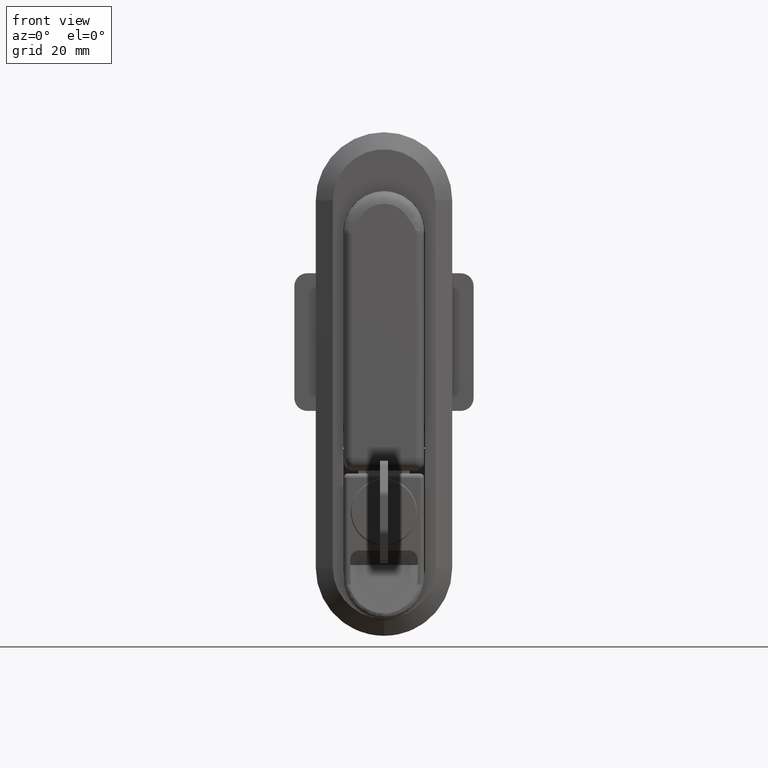
[diagram: clean part render]
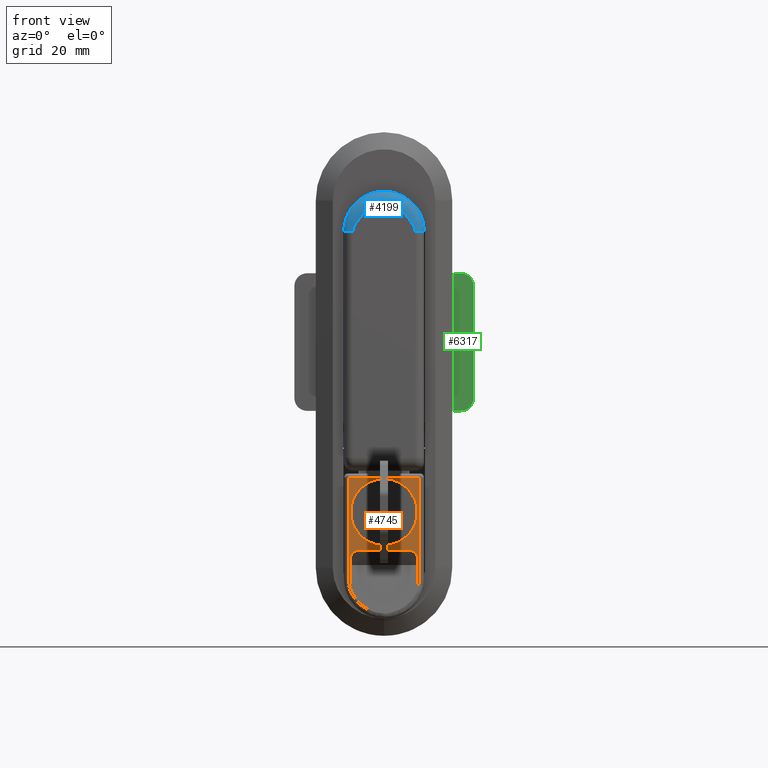
[diagram: same view with three faces highlighted in distinct colors, each labeled with its STEP entity id]
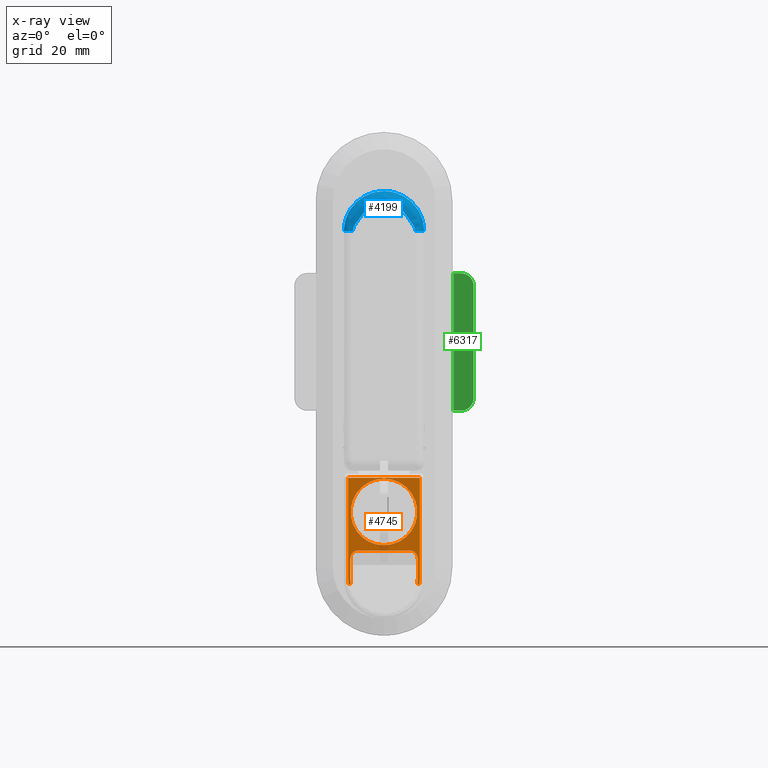
[diagram: x-ray of the same camera — body ghosted, the three highlighted faces saturated]
A machine part, front view with three faces highlighted in distinct colors.
The next image is the same camera in x-ray (body ghosted, the three faces saturated) — at least one of them is partly hidden behind the body in this view.
Their STEP definitions:

[orange] entity #4745 — the highlighted planar face has unit normal (0, 1, 0).
#4479 = VERTEX_POINT ( 'NONE', #8182 ) ;
#4517 = VERTEX_POINT ( 'NONE', #8241 ) ;
#4526 = VERTEX_POINT ( 'NONE', #8269 ) ;
#4528 = EDGE_CURVE ( 'NONE', #4517, #4526, #8258, .T. ) ;
#4530 = EDGE_CURVE ( 'NONE', #4550, #4479, #8257, .T. ) ;
#4539 = VERTEX_POINT ( 'NONE', #8290 ) ;
#4541 = EDGE_CURVE ( 'NONE', #4542, #4539, #8289, .T. ) ;
#4542 = VERTEX_POINT ( 'NONE', #8284 ) ;
#4550 = VERTEX_POINT ( 'NONE', #8343 ) ;
#4716 = ORIENTED_EDGE ( 'NONE', *, *, #4528, .T. ) ;
#4717 = ORIENTED_EDGE ( 'NONE', *, *, #4718, .T. ) ;
#4718 = EDGE_CURVE ( 'NONE', #4526, #4719, #9195, .T. ) ;
#4719 = VERTEX_POINT ( 'NONE', #9190 ) ;
#4720 = ORIENTED_EDGE ( 'NONE', *, *, #4779, .T. ) ;
#4721 = ORIENTED_EDGE ( 'NONE', *, *, #4722, .T. ) ;
#4722 = EDGE_CURVE ( 'NONE', #4539, #4542, #9189, .T. ) ;
#4723 = EDGE_LOOP ( 'NONE', ( #4724, #4727, #4730, #4733, #4794, #4797, #4800, #4716, #4717, #4720, #4780, #4781, #4784, #4787, #4790, #4792 ) ) ;
#4724 = ORIENTED_EDGE ( 'NONE', *, *, #4725, .T. ) ;
#4725 = EDGE_CURVE ( 'NONE', #4479, #4726, #9183, .T. ) ;
#4726 = VERTEX_POINT ( 'NONE', #9243 ) ;
#4727 = ORIENTED_EDGE ( 'NONE', *, *, #4728, .T. ) ;
#4728 = EDGE_CURVE ( 'NONE', #4726, #4729, #9242, .T. ) ;
#4729 = VERTEX_POINT ( 'NONE', #9237 ) ;
#4730 = ORIENTED_EDGE ( 'NONE', *, *, #4731, .F. ) ;
#4731 = EDGE_CURVE ( 'NONE', #4732, #4729, #9236, .T. ) ;
#4732 = VERTEX_POINT ( 'NONE', #9232 ) ;
#4733 = ORIENTED_EDGE ( 'NONE', *, *, #4734, .T. ) ;
#4734 = EDGE_CURVE ( 'NONE', #4732, #4793, #9230, .T. ) ;
#4739 = VERTEX_POINT ( 'NONE', #9215 ) ;
#4741 = EDGE_CURVE ( 'NONE', #4742, #4739, #9279, .T. ) ;
#4742 = VERTEX_POINT ( 'NONE', #9275 ) ;
#4745 = ADVANCED_FACE ( 'NONE', ( #9274, #9268 ), #9267, .F. ) ;
#4746 = EDGE_LOOP ( 'NONE', ( #4747, #4721 ) ) ;
#4747 = ORIENTED_EDGE ( 'NONE', *, *, #4541, .T. ) ;
#4779 = EDGE_CURVE ( 'NONE', #4719, #4742, #9315, .T. ) ;
#4780 = ORIENTED_EDGE ( 'NONE', *, *, #4741, .T. ) ;
#4781 = ORIENTED_EDGE ( 'NONE', *, *, #4782, .T. ) ;
#4782 = EDGE_CURVE ( 'NONE', #4739, #4783, #9307, .T. ) ;
#4783 = VERTEX_POINT ( 'NONE', #9303 ) ;
#4784 = ORIENTED_EDGE ( 'NONE', *, *, #4785, .T. ) ;
#4785 = EDGE_CURVE ( 'NONE', #4783, #4786, #9354, .T. ) ;
#4786 = VERTEX_POINT ( 'NONE', #9349 ) ;
#4787 = ORIENTED_EDGE ( 'NONE', *, *, #4788, .T. ) ;
#4788 = EDGE_CURVE ( 'NONE', #4786, #4789, #9348, .T. ) ;
#4789 = VERTEX_POINT ( 'NONE', #9347 ) ;
#4790 = ORIENTED_EDGE ( 'NONE', *, *, #4791, .F. ) ;
#4791 = EDGE_CURVE ( 'NONE', #4550, #4789, #9342, .T. ) ;
#4792 = ORIENTED_EDGE ( 'NONE', *, *, #4530, .T. ) ;
#4793 = VERTEX_POINT ( 'NONE', #9338 ) ;
#4794 = ORIENTED_EDGE ( 'NONE', *, *, #4795, .F. ) ;
#4795 = EDGE_CURVE ( 'NONE', #4796, #4793, #9337, .T. ) ;
#4796 = VERTEX_POINT ( 'NONE', #9333 ) ;
#4797 = ORIENTED_EDGE ( 'NONE', *, *, #4798, .T. ) ;
#4798 = EDGE_CURVE ( 'NONE', #4796, #4799, #9331, .T. ) ;
#4799 = VERTEX_POINT ( 'NONE', #9332 ) ;
#4800 = ORIENTED_EDGE ( 'NONE', *, *, #4801, .F. ) ;
#4801 = EDGE_CURVE ( 'NONE', #4517, #4799, #9326, .T. ) ;
#8182 = CARTESIAN_POINT ( 'NONE',  ( -3.399999999999999900, 7.900000000000000400, -80.79999999999999700 ) ) ;
#8241 = CARTESIAN_POINT ( 'NONE',  ( -3.399999999999999900, -8.239804809718641800, -82.14100500000010600 ) ) ;
#8249 = DIRECTION ( 'NONE',  ( 0.0000000000000000000, 0.0000000000000000000, -1.000000000000000000 ) ) ;
#8250 = DIRECTION ( 'NONE',  ( 1.000000000000000000, 0.0000000000000000000, 0.0000000000000000000 ) ) ;
#8251 = CARTESIAN_POINT ( 'NONE',  ( -3.399999999999999900, 0.0000000000000000000, -80.79999999999999700 ) ) ;
#8252 = AXIS2_PLACEMENT_3D ( 'NONE', #8251, #8250, #8249 ) ;
#8253 = CARTESIAN_POINT ( 'NONE',  ( -3.399999999999999900, -8.291526928518660400, -82.14557838628978500 ) ) ;
#8254 = CARTESIAN_POINT ( 'NONE',  ( -3.399999999999999900, -8.274492251707306100, -82.14251477352333100 ) ) ;
#8255 = CARTESIAN_POINT ( 'NONE',  ( -3.399999999999999900, -8.257112782946247600, -82.14100500000010600 ) ) ;
#8256 = CARTESIAN_POINT ( 'NONE',  ( -3.399999999999999900, -8.239804809718641800, -82.14100500000010600 ) ) ;
#8257 = CIRCLE ( 'NONE', #8252, 7.900000000000003900 ) ;
#8258 = B_SPLINE_CURVE_WITH_KNOTS ( 'NONE', 3,
 ( #8256, #8255, #8254, #8253 ),
 .UNSPECIFIED., .F., .F.,
 ( 4, 4 ),
 ( 5.497513588186636000E-016, 5.192391968423578800E-005 ),
 .UNSPECIFIED. ) ;
#8269 = CARTESIAN_POINT ( 'NONE',  ( -3.399999999999999900, -8.291526928518660400, -82.14557838628978500 ) ) ;
#8284 = CARTESIAN_POINT ( 'NONE',  ( -3.399999999999959900, 0.0000000000000000000, -57.39999999999999100 ) ) ;
#8285 = DIRECTION ( 'NONE',  ( 0.0000000000000000000, 0.0000000000000000000, -1.000000000000000000 ) ) ;
#8286 = DIRECTION ( 'NONE',  ( 1.000000000000000000, 0.0000000000000000000, 0.0000000000000000000 ) ) ;
#8287 = CARTESIAN_POINT ( 'NONE',  ( -3.399999999999959900, 0.0000000000000000000, -65.19999999999998900 ) ) ;
#8288 = AXIS2_PLACEMENT_3D ( 'NONE', #8287, #8286, #8285 ) ;
#8289 = CIRCLE ( 'NONE', #8288, 7.800000000000001600 ) ;
#8290 = CARTESIAN_POINT ( 'NONE',  ( -3.399999999999959900, 9.552245033349352600E-016, -73.00000000000000000 ) ) ;
#8343 = CARTESIAN_POINT ( 'NONE',  ( -3.399999999999999900, 7.785351988829240200, -82.14100500000010600 ) ) ;
#9180 = DIRECTION ( 'NONE',  ( 0.0000000000000000000, 0.0000000000000000000, 1.000000000000000000 ) ) ;
#9181 = VECTOR ( 'NONE', #9180, 1000.000000000000000 ) ;
#9182 = CARTESIAN_POINT ( 'NONE',  ( -3.399999999999999900, 7.900000000000000400, -57.20000000000000300 ) ) ;
#9183 = LINE ( 'NONE', #9182, #9181 ) ;
#9185 = DIRECTION ( 'NONE',  ( 0.0000000000000000000, 0.0000000000000000000, -1.000000000000000000 ) ) ;
#9186 = DIRECTION ( 'NONE',  ( 1.000000000000000000, 0.0000000000000000000, 0.0000000000000000000 ) ) ;
#9187 = CARTESIAN_POINT ( 'NONE',  ( -3.399999999999959900, 0.0000000000000000000, -65.19999999999998900 ) ) ;
#9188 = AXIS2_PLACEMENT_3D ( 'NONE', #9187, #9186, #9185 ) ;
#9189 = CIRCLE ( 'NONE', #9188, 7.800000000000001600 ) ;
#9190 = CARTESIAN_POINT ( 'NONE',  ( -3.399999999999999900, -8.400000000000000400, -80.79999999999999700 ) ) ;
#9191 = DIRECTION ( 'NONE',  ( 0.0000000000000000000, -1.776356839400249700E-015, -1.000000000000000000 ) ) ;
#9192 = DIRECTION ( 'NONE',  ( -1.000000000000000000, 0.0000000000000000000, 0.0000000000000000000 ) ) ;
#9193 = CARTESIAN_POINT ( 'NONE',  ( -3.399999999999999900, 0.0000000000000000000, -80.79999999999999700 ) ) ;
#9194 = AXIS2_PLACEMENT_3D ( 'NONE', #9193, #9192, #9191 ) ;
#9195 = CIRCLE ( 'NONE', #9194, 8.400000000000003900 ) ;
#9215 = CARTESIAN_POINT ( 'NONE',  ( -3.399999999999999900, 8.400000000000000400, -57.20000000000000300 ) ) ;
#9226 = DIRECTION ( 'NONE',  ( 0.0000000000000000000, 0.0000000000000000000, -1.000000000000000000 ) ) ;
#9227 = DIRECTION ( 'NONE',  ( 1.000000000000000000, 0.0000000000000000000, 0.0000000000000000000 ) ) ;
#9228 = CARTESIAN_POINT ( 'NONE',  ( -3.399999999999999900, -5.899999999999999500, -76.20000000000000300 ) ) ;
#9229 = AXIS2_PLACEMENT_3D ( 'NONE', #9228, #9227, #9226 ) ;
#9230 = CIRCLE ( 'NONE', #9229, 2.000000000000001800 ) ;
#9232 = CARTESIAN_POINT ( 'NONE',  ( -3.399999999999999900, -5.899999999999999500, -74.20000000000000300 ) ) ;
#9233 = DIRECTION ( 'NONE',  ( 0.0000000000000000000, 1.000000000000000000, 0.0000000000000000000 ) ) ;
#9234 = VECTOR ( 'NONE', #9233, 1000.000000000000000 ) ;
#9235 = CARTESIAN_POINT ( 'NONE',  ( -3.399999999999999900, -992.1000000000000200, -74.20000000000000300 ) ) ;
#9236 = LINE ( 'NONE', #9235, #9234 ) ;
#9237 = CARTESIAN_POINT ( 'NONE',  ( -3.399999999999999900, 5.899999999999999500, -74.20000000000000300 ) ) ;
#9238 = DIRECTION ( 'NONE',  ( 0.0000000000000000000, 0.0000000000000000000, -1.000000000000000000 ) ) ;
#9239 = DIRECTION ( 'NONE',  ( 1.000000000000000000, 0.0000000000000000000, 0.0000000000000000000 ) ) ;
#9240 = CARTESIAN_POINT ( 'NONE',  ( -3.399999999999999900, 5.899999999999999500, -76.20000000000000300 ) ) ;
#9241 = AXIS2_PLACEMENT_3D ( 'NONE', #9240, #9239, #9238 ) ;
#9242 = CIRCLE ( 'NONE', #9241, 2.000000000000001800 ) ;
#9243 = CARTESIAN_POINT ( 'NONE',  ( -3.399999999999999900, 7.900000000000000400, -76.20000000000000300 ) ) ;
#9263 = DIRECTION ( 'NONE',  ( 0.0000000000000000000, 0.0000000000000000000, -1.000000000000000000 ) ) ;
#9264 = DIRECTION ( 'NONE',  ( 1.000000000000000000, 0.0000000000000000000, 0.0000000000000000000 ) ) ;
#9265 = CARTESIAN_POINT ( 'NONE',  ( -3.399999999999999900, -990.6000000000000200, -57.20000000000000300 ) ) ;
#9266 = AXIS2_PLACEMENT_3D ( 'NONE', #9265, #9264, #9263 ) ;
#9267 = PLANE ( 'NONE',  #9266 ) ;
#9268 = FACE_OUTER_BOUND ( 'NONE', #4723, .T. ) ;
#9274 = FACE_BOUND ( 'NONE', #4746, .T. ) ;
#9275 = CARTESIAN_POINT ( 'NONE',  ( -3.399999999999999900, -8.400000000000000400, -57.20000000000000300 ) ) ;
#9276 = DIRECTION ( 'NONE',  ( 0.0000000000000000000, 1.000000000000000000, 0.0000000000000000000 ) ) ;
#9277 = VECTOR ( 'NONE', #9276, 1000.000000000000000 ) ;
#9278 = CARTESIAN_POINT ( 'NONE',  ( -3.399999999999999900, -990.6000000000000200, -57.20000000000000300 ) ) ;
#9279 = LINE ( 'NONE', #9278, #9277 ) ;
#9303 = CARTESIAN_POINT ( 'NONE',  ( -3.399999999999999900, 8.400000000000000400, -80.79999999999999700 ) ) ;
#9304 = DIRECTION ( 'NONE',  ( 0.0000000000000000000, 0.0000000000000000000, -1.000000000000000000 ) ) ;
#9305 = VECTOR ( 'NONE', #9304, 1000.000000000000000 ) ;
#9306 = CARTESIAN_POINT ( 'NONE',  ( -3.399999999999999900, 8.400000000000000400, -57.20000000000000300 ) ) ;
#9307 = LINE ( 'NONE', #9306, #9305 ) ;
#9308 = DIRECTION ( 'NONE',  ( 0.0000000000000000000, 0.0000000000000000000, 1.000000000000000000 ) ) ;
#9309 = VECTOR ( 'NONE', #9308, 1000.000000000000000 ) ;
#9310 = CARTESIAN_POINT ( 'NONE',  ( -3.399999999999999900, -8.400000000000000400, -57.20000000000000300 ) ) ;
#9315 = LINE ( 'NONE', #9310, #9309 ) ;
#9325 = CARTESIAN_POINT ( 'NONE',  ( -3.399999999999999900, -990.6000000000000200, -82.14100500000010600 ) ) ;
#9326 = LINE ( 'NONE', #9325, #9384 ) ;
#9327 = DIRECTION ( 'NONE',  ( 0.0000000000000000000, 0.0000000000000000000, -1.000000000000000000 ) ) ;
#9328 = DIRECTION ( 'NONE',  ( 1.000000000000000000, 0.0000000000000000000, 0.0000000000000000000 ) ) ;
#9329 = CARTESIAN_POINT ( 'NONE',  ( -3.399999999999999900, 0.0000000000000000000, -80.79999999999999700 ) ) ;
#9330 = AXIS2_PLACEMENT_3D ( 'NONE', #9329, #9328, #9327 ) ;
#9331 = CIRCLE ( 'NONE', #9330, 7.900000000000003900 ) ;
#9332 = CARTESIAN_POINT ( 'NONE',  ( -3.399999999999999900, -7.785351988830130100, -82.14100500000010600 ) ) ;
#9333 = CARTESIAN_POINT ( 'NONE',  ( -3.399999999999999900, -7.900000000000000400, -80.79999999999999700 ) ) ;
#9334 = DIRECTION ( 'NONE',  ( 0.0000000000000000000, 0.0000000000000000000, 1.000000000000000000 ) ) ;
#9335 = VECTOR ( 'NONE', #9334, 1000.000000000000000 ) ;
#9336 = CARTESIAN_POINT ( 'NONE',  ( -3.399999999999999900, -7.900000000000000400, -57.20000000000000300 ) ) ;
#9337 = LINE ( 'NONE', #9336, #9335 ) ;
#9338 = CARTESIAN_POINT ( 'NONE',  ( -3.399999999999999900, -7.900000000000000400, -76.20000000000000300 ) ) ;
#9339 = DIRECTION ( 'NONE',  ( 0.0000000000000000000, 1.000000000000000000, 0.0000000000000000000 ) ) ;
#9340 = VECTOR ( 'NONE', #9339, 1000.000000000000000 ) ;
#9341 = CARTESIAN_POINT ( 'NONE',  ( -3.399999999999999900, -990.6000000000000200, -82.14100500000010600 ) ) ;
#9342 = LINE ( 'NONE', #9341, #9340 ) ;
#9343 = CARTESIAN_POINT ( 'NONE',  ( -3.399999999999999900, 8.239804809717759000, -82.14100500000010600 ) ) ;
#9344 = CARTESIAN_POINT ( 'NONE',  ( -3.399999999999999900, 8.257112782946242300, -82.14100500000010600 ) ) ;
#9345 = CARTESIAN_POINT ( 'NONE',  ( -3.399999999999999900, 8.274492251707414400, -82.14251477352067400 ) ) ;
#9346 = CARTESIAN_POINT ( 'NONE',  ( -3.399999999999999900, 8.291526928518660400, -82.14557838628978500 ) ) ;
#9347 = CARTESIAN_POINT ( 'NONE',  ( -3.399999999999999900, 8.239804809717759000, -82.14100500000010600 ) ) ;
#9348 = B_SPLINE_CURVE_WITH_KNOTS ( 'NONE', 3,
 ( #9346, #9345, #9344, #9343 ),
 .UNSPECIFIED., .F., .F.,
 ( 4, 4 ),
 ( 0.0000000000000000000, 5.192391968456513400E-005 ),
 .UNSPECIFIED. ) ;
#9349 = CARTESIAN_POINT ( 'NONE',  ( -3.399999999999999900, 8.291526928518660400, -82.14557838628978500 ) ) ;
#9350 = DIRECTION ( 'NONE',  ( 0.0000000000000000000, 0.0000000000000000000, -1.000000000000000000 ) ) ;
#9351 = DIRECTION ( 'NONE',  ( -1.000000000000000000, 0.0000000000000000000, 0.0000000000000000000 ) ) ;
#9352 = CARTESIAN_POINT ( 'NONE',  ( -3.399999999999999900, 0.0000000000000000000, -80.79999999999999700 ) ) ;
#9353 = AXIS2_PLACEMENT_3D ( 'NONE', #9352, #9351, #9350 ) ;
#9354 = CIRCLE ( 'NONE', #9353, 8.400000000000003900 ) ;
#9383 = DIRECTION ( 'NONE',  ( 0.0000000000000000000, 1.000000000000000000, 0.0000000000000000000 ) ) ;
#9384 = VECTOR ( 'NONE', #9383, 1000.000000000000000 ) ;

[blue] entity #4199 — the highlighted face is a freeform B-spline surface patch.
#4198 = EDGE_CURVE ( 'NONE', #5444, #5421, #7609, .T. ) ;
#4199 = ADVANCED_FACE ( 'NONE', ( #7610 ), #7636, .F. ) ;
#4200 = EDGE_LOOP ( 'NONE', ( #4201, #4202, #4203, #4204, #4205, #4264 ) ) ;
#4201 = ORIENTED_EDGE ( 'NONE', *, *, #4208, .F. ) ;
#4202 = ORIENTED_EDGE ( 'NONE', *, *, #5555, .T. ) ;
#4203 = ORIENTED_EDGE ( 'NONE', *, *, #5552, .T. ) ;
#4204 = ORIENTED_EDGE ( 'NONE', *, *, #5446, .T. ) ;
#4205 = ORIENTED_EDGE ( 'NONE', *, *, #4198, .T. ) ;
#4208 = EDGE_CURVE ( 'NONE', #5556, #5489, #7602, .T. ) ;
#4264 = ORIENTED_EDGE ( 'NONE', *, *, #5491, .T. ) ;
#5421 = VERTEX_POINT ( 'NONE', #12411 ) ;
#5444 = VERTEX_POINT ( 'NONE', #12453 ) ;
#5446 = EDGE_CURVE ( 'NONE', #5447, #5444, #12451, .T. ) ;
#5447 = VERTEX_POINT ( 'NONE', #12452 ) ;
#5489 = VERTEX_POINT ( 'NONE', #12525 ) ;
#5491 = EDGE_CURVE ( 'NONE', #5421, #5489, #12582, .T. ) ;
#5552 = EDGE_CURVE ( 'NONE', #5553, #5447, #12723, .T. ) ;
#5553 = VERTEX_POINT ( 'NONE', #12722 ) ;
#5555 = EDGE_CURVE ( 'NONE', #5556, #5553, #12714, .T. ) ;
#5556 = VERTEX_POINT ( 'NONE', #12715 ) ;
#7602 =( BOUNDED_CURVE ( )  B_SPLINE_CURVE ( 2, ( #7690, #7689, #7688 ),
 .UNSPECIFIED., .F., .T. ) 
 B_SPLINE_CURVE_WITH_KNOTS ( ( 3, 3 ),
 ( 0.0000000000000000000, 1.000000000000000000 ),
 .UNSPECIFIED. ) 
 CURVE ( )  GEOMETRIC_REPRESENTATION_ITEM ( )  RATIONAL_B_SPLINE_CURVE ( ( 1.000000000000000000, 0.7071067811865480200, 1.000000000000000000 ) ) 
 REPRESENTATION_ITEM ( '' )  );
#7603 = CARTESIAN_POINT ( 'NONE',  ( -3.500000000000000000, 6.604247028689099100, 2.408861487050674800 ) ) ;
#7604 = CARTESIAN_POINT ( 'NONE',  ( -3.500000000000000000, 7.299999961357069200, 1.593784728837129800 ) ) ;
#7605 = CARTESIAN_POINT ( 'NONE',  ( -3.500000000000000000, 7.299999999999999800, 0.5999999999999999800 ) ) ;
#7606 = CARTESIAN_POINT ( 'NONE',  ( -3.500000000000000000, 7.299999999999999800, 0.5999999999999999800 ) ) ;
#7607 = CARTESIAN_POINT ( 'NONE',  ( -3.499999999999999600, 9.400000000000062500, 0.5999999999999970900 ) ) ;
#7608 = CARTESIAN_POINT ( 'NONE',  ( -1.399999999999955900, 9.400000000000000400, 0.5999999999999999800 ) ) ;
#7609 =( BOUNDED_CURVE ( )  B_SPLINE_CURVE ( 2, ( #7608, #7607, #7606 ),
 .UNSPECIFIED., .F., .F. ) 
 B_SPLINE_CURVE_WITH_KNOTS ( ( 3, 3 ),
 ( 0.0000000000000000000, 1.000000000000000000 ),
 .UNSPECIFIED. ) 
 CURVE ( )  GEOMETRIC_REPRESENTATION_ITEM ( )  RATIONAL_B_SPLINE_CURVE ( ( 1.000000000000000000, 0.7071067811865400200, 1.000000000000000000 ) ) 
 REPRESENTATION_ITEM ( '' )  );
#7610 = FACE_OUTER_BOUND ( 'NONE', #4200, .T. ) ;
#7611 = CARTESIAN_POINT ( 'NONE',  ( -3.500000000000000000, 7.064713442045501800, 4.679013598934752800 ) ) ;
#7612 = CARTESIAN_POINT ( 'NONE',  ( -3.500000000000000000, 7.330968394073655900, 4.215638652075456100 ) ) ;
#7613 = CARTESIAN_POINT ( 'NONE',  ( -3.500000000000002200, 7.463129071894962300, 3.982335992856312700 ) ) ;
#7614 = CARTESIAN_POINT ( 'NONE',  ( -3.500000000000002200, 8.098644543355918700, 2.790541552550903000 ) ) ;
#7615 = CARTESIAN_POINT ( 'NONE',  ( -3.500000000000941000, 8.530151502933815500, 1.732554161948471900 ) ) ;
#7616 = CARTESIAN_POINT ( 'NONE',  ( -3.500000000000000000, 8.530151519016532900, 0.5999999999999985300 ) ) ;
#7617 = CARTESIAN_POINT ( 'NONE',  ( -3.500000000000000000, -7.299999999999999800, 0.5999999999999999800 ) ) ;
#7618 = CARTESIAN_POINT ( 'NONE',  ( -3.500000000000000000, -7.299999961360379400, 1.593784728837824800 ) ) ;
#7619 = CARTESIAN_POINT ( 'NONE',  ( -3.500000000000000000, -6.604247028688649700, 2.408861487049764400 ) ) ;
#7620 = CARTESIAN_POINT ( 'NONE',  ( -3.500000000000000000, -5.902375201992359000, 3.276520659253709900 ) ) ;
#7621 = CARTESIAN_POINT ( 'NONE',  ( -3.500000000000000000, -5.769535399781200400, 3.446024905262774900 ) ) ;
#7622 = CARTESIAN_POINT ( 'NONE',  ( -3.500000000000000000, -5.536884684436301100, 3.797382537489234300 ) ) ;
#7623 = CARTESIAN_POINT ( 'NONE',  ( -3.500000000000000000, -5.437763876023940000, 3.981506903274350400 ) ) ;
#7624 = CARTESIAN_POINT ( 'NONE',  ( -3.500000000000000000, -5.088688804160950600, 4.503934667427680300 ) ) ;
#7625 = CARTESIAN_POINT ( 'NONE',  ( -3.500000000000000000, -4.821675594912390400, 4.829291204275150100 ) ) ;
#7626 = CARTESIAN_POINT ( 'NONE',  ( -3.500000000000000000, -3.340714618319954500, 6.310252180868910300 ) ) ;
#7627 = CARTESIAN_POINT ( 'NONE',  ( -3.500000000000000000, -1.675516078754155000, 6.999999999998929700 ) ) ;
#7628 = CARTESIAN_POINT ( 'NONE',  ( -3.500000000000000000, 1.675516078754165000, 7.000000000001070300 ) ) ;
#7629 = CARTESIAN_POINT ( 'NONE',  ( -3.500000000000000000, 3.340714618318899800, 6.310252180867849800 ) ) ;
#7630 = CARTESIAN_POINT ( 'NONE',  ( -3.500000000000000000, 4.821675594912660400, 4.829291204275421000 ) ) ;
#7631 = CARTESIAN_POINT ( 'NONE',  ( -3.500000000000000000, 5.088688804160610400, 4.503934667427810000 ) ) ;
#7632 = CARTESIAN_POINT ( 'NONE',  ( -3.500000000000000000, 5.437763876024149600, 3.981506903274269600 ) ) ;
#7633 = CARTESIAN_POINT ( 'NONE',  ( -3.500000000000000000, 5.536884684436419200, 3.797382537489014900 ) ) ;
#7634 = CARTESIAN_POINT ( 'NONE',  ( -3.500000000000000000, 5.769535399781148900, 3.446024905262949900 ) ) ;
#7635 = CARTESIAN_POINT ( 'NONE',  ( -3.500000000000000000, 5.902375201992279100, 3.276520659253475000 ) ) ;
#7636 =( BOUNDED_SURFACE ( )  B_SPLINE_SURFACE ( 3, 3, ( 
 ( #7605, #7604, #7603, #7635, #7634, #7633, #7632, #7631, #7630, #7629, #7628, #7627, #7626, #7625, #7624, #7623, #7622, #7621, #7620, #7619, #7618, #7617 ),
 ( #7616, #7615, #7614, #7613, #7612, #7611, #7685, #7684, #7683, #7682, #7681, #7680, #7679, #7678, #7677, #7676, #7675, #7674, #7673, #7672, #7671, #7670 ),
 ( #7669, #7668, #7667, #7666, #7665, #7664, #7663, #7662, #7661, #7660, #7659, #7658, #7657, #7656, #7655, #7654, #7653, #7652, #7651, #7650, #7649, #7648 ),
 ( #7647, #7646, #7645, #7644, #7643, #7642, #7641, #7640, #7639, #7638, #7702, #7701, #7700, #7699, #7698, #7697, #7696, #7695, #7694, #7693, #7692, #7691 ) ),
 .UNSPECIFIED., .F., .F., .T. ) 
 B_SPLINE_SURFACE_WITH_KNOTS ( ( 4, 4 ),
 ( 4, 2, 2, 2, 2, 2, 2, 2, 2, 2, 4 ),
 ( 0.0000000000000000000, 1.000000000000000000 ),
 ( 1.570796326794895000, 1.963495408493620000, 2.061670178918300100, 2.159844949342985200, 2.356194490192344800, 3.141592653589795300, 3.926990816987240100, 4.123340357836605500, 4.221515128261285300, 4.319689898685965100, 4.712388980384689700 ),
 .UNSPECIFIED. ) 
 GEOMETRIC_REPRESENTATION_ITEM ( )  RATIONAL_B_SPLINE_SURFACE ( (
 ( 1.000000000000000000, 1.000000000000000000, 1.000000000000000000, 1.000000000000000000, 1.000000000000000000, 1.000000000000000000, 1.000000000000000000, 1.000000000000000000, 1.000000000000000000, 1.000000000000000000, 1.000000000000000000, 1.000000000000000000, 1.000000000000000000, 1.000000000000000000, 1.000000000000000000, 1.000000000000000000, 1.000000000000000000, 1.000000000000000000, 1.000000000000000000, 1.000000000000000000, 1.000000000000000000, 1.000000000000000000),
 ( 0.8047378541243599400, 0.8047378541243599400, 0.8047378541243700400, 0.8047378541243700400, 0.8047378541243706000, 0.8047378541243706000, 0.8047378541243693800, 0.8047378541243693800, 0.8047378541243693800, 0.8047378541243693800, 0.8047378541243693800, 0.8047378541243693800, 0.8047378541243693800, 0.8047378541243693800, 0.8047378541243693800, 0.8047378541243693800, 0.8047378541243620500, 0.8047378541243620500, 0.8047378541243706000, 0.8047378541243706000, 0.8047378541243599400, 0.8047378541243599400),
 ( 0.8047378541243599400, 0.8047378541243599400, 0.8047378541243700400, 0.8047378541243700400, 0.8047378541243706000, 0.8047378541243706000, 0.8047378541243693800, 0.8047378541243693800, 0.8047378541243693800, 0.8047378541243693800, 0.8047378541243693800, 0.8047378541243693800, 0.8047378541243693800, 0.8047378541243693800, 0.8047378541243693800, 0.8047378541243693800, 0.8047378541243620500, 0.8047378541243620500, 0.8047378541243706000, 0.8047378541243706000, 0.8047378541243599400, 0.8047378541243599400),
 ( 1.000000000000000000, 1.000000000000000000, 1.000000000000000000, 1.000000000000000000, 1.000000000000000000, 1.000000000000000000, 1.000000000000000000, 1.000000000000000000, 1.000000000000000000, 1.000000000000000000, 1.000000000000000000, 1.000000000000000000, 1.000000000000000000, 1.000000000000000000, 1.000000000000000000, 1.000000000000000000, 1.000000000000000000, 1.000000000000000000, 1.000000000000000000, 1.000000000000000000, 1.000000000000000000, 1.000000000000000000) ) ) 
 REPRESENTATION_ITEM ( '' )  SURFACE ( )  );
#7638 = CARTESIAN_POINT ( 'NONE',  ( -0.5000000000000560700, 4.906674595656680200, 8.986932890650420400 ) ) ;
#7639 = CARTESIAN_POINT ( 'NONE',  ( -0.5000000000000560700, 7.081836030027770500, 6.811771456279331000 ) ) ;
#7640 = CARTESIAN_POINT ( 'NONE',  ( -0.5000000000000560700, 7.474011681111260700, 6.333904042784350700 ) ) ;
#7641 = CARTESIAN_POINT ( 'NONE',  ( -0.5000000000000560700, 7.986715692910279600, 5.566588264184209900 ) ) ;
#7642 = CARTESIAN_POINT ( 'NONE',  ( -0.4903320358932229900, 8.145051517041960000, 5.302420900987499400 ) ) ;
#7643 = CARTESIAN_POINT ( 'NONE',  ( -0.5298828078569219900, 8.435068252707139900, 4.759837751341239100 ) ) ;
#7644 = CARTESIAN_POINT ( 'NONE',  ( -0.5773437546363050500, 8.566748717059100600, 4.481422801509524800 ) ) ;
#7645 = CARTESIAN_POINT ( 'NONE',  ( -0.8937499814550879900, 9.155343159794139000, 3.060430115121125300 ) ) ;
#7646 = CARTESIAN_POINT ( 'NONE',  ( -1.399999962972464000, 9.400000000000000400, 1.830678969114545100 ) ) ;
#7647 = CARTESIAN_POINT ( 'NONE',  ( -1.399999999999955900, 9.400000000000000400, 0.5999999999999999800 ) ) ;
#7648 = CARTESIAN_POINT ( 'NONE',  ( -2.630151519016476600, -9.400000000000019900, 0.6000000000000013100 ) ) ;
#7649 = CARTESIAN_POINT ( 'NONE',  ( -2.630151503679187400, -9.399999999926242500, 1.830678969119718900 ) ) ;
#7650 = CARTESIAN_POINT ( 'NONE',  ( -2.420455895383477600, -9.155343159776400300, 3.060430115114189500 ) ) ;
#7651 = CARTESIAN_POINT ( 'NONE',  ( -2.289396145015961400, -8.566748717063452600, 4.481422801511254100 ) ) ;
#7652 = CARTESIAN_POINT ( 'NONE',  ( -2.269737177176824000, -8.435068252706722400, 4.759837751340918500 ) ) ;
#7653 = CARTESIAN_POINT ( 'NONE',  ( -2.253354711027066000, -8.145051517042340100, 5.302420900987920400 ) ) ;
#7654 = CARTESIAN_POINT ( 'NONE',  ( -2.257359312880782300, -7.986715692910243200, 5.566588264184140700 ) ) ;
#7655 = CARTESIAN_POINT ( 'NONE',  ( -2.257359312880666800, -7.474011681111168300, 6.333904042784472400 ) ) ;
#7656 = CARTESIAN_POINT ( 'NONE',  ( -2.257359312880666800, -7.081836030028009400, 6.811771456278875400 ) ) ;
#7657 = CARTESIAN_POINT ( 'NONE',  ( -2.257359312881055800, -4.906674595655589500, 8.986932890652083100 ) ) ;
#7658 = CARTESIAN_POINT ( 'NONE',  ( -2.257359312880745900, -2.460914240665020200, 10.00000000000121700 ) ) ;
#7659 = CARTESIAN_POINT ( 'NONE',  ( -2.257359312880745900, 2.460914240665032200, 9.999999999998717500 ) ) ;
#7660 = CARTESIAN_POINT ( 'NONE',  ( -2.257359312880434600, 4.906674595656658000, 8.986932890651022600 ) ) ;
#7661 = CARTESIAN_POINT ( 'NONE',  ( -2.257359312880824500, 7.081836030027744800, 6.811771456279152500 ) ) ;
#7662 = CARTESIAN_POINT ( 'NONE',  ( -2.257359312880588200, 7.474011681111128300, 6.333904042784260100 ) ) ;
#7663 = CARTESIAN_POINT ( 'NONE',  ( -2.257359312880824500, 7.986715692910307100, 5.566588264184226800 ) ) ;
#7664 = CARTESIAN_POINT ( 'NONE',  ( -2.253354711027159700, 8.145051517042386300, 5.302420900987629100 ) ) ;
#7665 = CARTESIAN_POINT ( 'NONE',  ( -2.269737177176849300, 8.435068252706642500, 4.759837751341075700 ) ) ;
#7666 = CARTESIAN_POINT ( 'NONE',  ( -2.289396145015938400, 8.566748717063308800, 4.481422801511161700 ) ) ;
#7667 = CARTESIAN_POINT ( 'NONE',  ( -2.420455895383575800, 9.155343159777150000, 3.060430115114512400 ) ) ;
#7668 = CARTESIAN_POINT ( 'NONE',  ( -2.630151503680127500, 9.399999999923750200, 1.830678969119448300 ) ) ;
#7669 = CARTESIAN_POINT ( 'NONE',  ( -2.630151519016476600, 9.400000000000037700, 0.5999999999999985300 ) ) ;
#7670 = CARTESIAN_POINT ( 'NONE',  ( -3.500000000000000000, -8.530151519016515100, 0.6000000000000013100 ) ) ;
#7671 = CARTESIAN_POINT ( 'NONE',  ( -3.500000000000000000, -8.530151502937680900, 1.732554161949110900 ) ) ;
#7672 = CARTESIAN_POINT ( 'NONE',  ( -3.499999999999686000, -8.098644543355037600, 2.790541552550080500 ) ) ;
#7673 = CARTESIAN_POINT ( 'NONE',  ( -3.500000000000078200, -7.463129071895138200, 3.982335992856527600 ) ) ;
#7674 = CARTESIAN_POINT ( 'NONE',  ( -3.499999999999999100, -7.330968394073746500, 4.215638652075234000 ) ) ;
#7675 = CARTESIAN_POINT ( 'NONE',  ( -3.499999999999999100, -7.064713442045427200, 4.679013598935083200 ) ) ;
#7676 = CARTESIAN_POINT ( 'NONE',  ( -3.500000000000038600, -6.930905280520382100, 4.910026067030494300 ) ) ;
#7677 = CARTESIAN_POINT ( 'NONE',  ( -3.499999999999921400, -6.485978594839589400, 5.575905908784276800 ) ) ;
#7678 = CARTESIAN_POINT ( 'NONE',  ( -3.499999999999921400, -6.145646924664040600, 5.990601248762029500 ) ) ;
#7679 = CARTESIAN_POINT ( 'NONE',  ( -3.500000000000311800, -4.258032734909699400, 7.878215438517705700 ) ) ;
#7680 = CARTESIAN_POINT ( 'NONE',  ( -3.500000000000000900, -2.135591670138637300, 8.757359312881494200 ) ) ;
#7681 = CARTESIAN_POINT ( 'NONE',  ( -3.500000000000000900, 2.135591670138649300, 8.757359312879879500 ) ) ;
#7682 = CARTESIAN_POINT ( 'NONE',  ( -3.499999999999690900, 4.258032734909888500, 7.878215438516644300 ) ) ;
#7683 = CARTESIAN_POINT ( 'NONE',  ( -3.500000000000079000, 6.145646924663995300, 5.990601248762306600 ) ) ;
#7684 = CARTESIAN_POINT ( 'NONE',  ( -3.499999999999843700, 6.485978594839365600, 5.575905908784163100 ) ) ;
#7685 = CARTESIAN_POINT ( 'NONE',  ( -3.500000000000079000, 6.930905280520535800, 4.910026067030529800 ) ) ;
#7688 = CARTESIAN_POINT ( 'NONE',  ( -3.500000000000000000, -7.299999999999999800, 0.5999999999999999800 ) ) ;
#7689 = CARTESIAN_POINT ( 'NONE',  ( -3.499999999999995600, -9.399999999999984400, 0.6000000000000009800 ) ) ;
#7690 = CARTESIAN_POINT ( 'NONE',  ( -1.399999999999999900, -9.400000000000000400, 0.5999999999999999800 ) ) ;
#7691 = CARTESIAN_POINT ( 'NONE',  ( -1.399999999999955900, -9.400000000000000400, 0.5999999999999999800 ) ) ;
#7692 = CARTESIAN_POINT ( 'NONE',  ( -1.399999962972464000, -9.400000000000000400, 1.830678969114349900 ) ) ;
#7693 = CARTESIAN_POINT ( 'NONE',  ( -0.8937499814556160200, -9.155343159794000500, 3.060430115121420200 ) ) ;
#7694 = CARTESIAN_POINT ( 'NONE',  ( -0.5773437546361730500, -8.566748717059100600, 4.481422801509465300 ) ) ;
#7695 = CARTESIAN_POINT ( 'NONE',  ( -0.5298828078568930100, -8.435068252707139900, 4.759837751341209800 ) ) ;
#7696 = CARTESIAN_POINT ( 'NONE',  ( -0.4903320358930299800, -8.145051517041878200, 5.302420900987610400 ) ) ;
#7697 = CARTESIAN_POINT ( 'NONE',  ( -0.5000000000000560700, -7.986715692910290300, 5.566588264184169100 ) ) ;
#7698 = CARTESIAN_POINT ( 'NONE',  ( -0.5000000000000560700, -7.474011681111159400, 6.333904042784460800 ) ) ;
#7699 = CARTESIAN_POINT ( 'NONE',  ( -0.5000000000000560700, -7.081836030028029900, 6.811771456279060100 ) ) ;
#7700 = CARTESIAN_POINT ( 'NONE',  ( -0.5000000000000560700, -4.906674595655609900, 8.986932890651480900 ) ) ;
#7701 = CARTESIAN_POINT ( 'NONE',  ( -0.5000000000000560700, -2.460914240665030400, 10.00000000000000000 ) ) ;
#7702 = CARTESIAN_POINT ( 'NONE',  ( -0.5000000000000560700, 2.460914240665040200, 10.00000000000000000 ) ) ;
#12411 = CARTESIAN_POINT ( 'NONE',  ( -3.500000000000000000, 7.299999999999999800, 0.5999999999999999800 ) ) ;
#12436 = CARTESIAN_POINT ( 'NONE',  ( -0.5000000000081014100, -5.310728019598022500E-007, 9.999999999999985800 ) ) ;
#12451 = B_SPLINE_CURVE_WITH_KNOTS ( 'NONE', 3,
 ( #12436, #12497, #12496, #12495, #12494, #12493, #12492, #12491, #12490, #12489, #12488, #12487 ),
 .UNSPECIFIED., .F., .F.,
 ( 4, 2, 2, 2, 2, 4 ),
 ( 0.4999999820164116000, 0.7499999999999995600, 0.8124999999999987800, 0.8437500000000001100, 0.8749999999999997800, 1.000000000000000000 ),
 .UNSPECIFIED. ) ;
#12452 = CARTESIAN_POINT ( 'NONE',  ( -0.5000000000081014100, -5.310728019598022500E-007, 9.999999999999985800 ) ) ;
#12453 = CARTESIAN_POINT ( 'NONE',  ( -1.399999999999955900, 9.400000000000000400, 0.5999999999999999800 ) ) ;
#12487 = CARTESIAN_POINT ( 'NONE',  ( -1.399999999999955900, 9.400000000000000400, 0.5999999999999999800 ) ) ;
#12488 = CARTESIAN_POINT ( 'NONE',  ( -1.399999962972464000, 9.400000000000000400, 1.830678969114545100 ) ) ;
#12489 = CARTESIAN_POINT ( 'NONE',  ( -0.8937499814550879900, 9.155343159794139000, 3.060430115121124800 ) ) ;
#12490 = CARTESIAN_POINT ( 'NONE',  ( -0.5773437546363050500, 8.566748717059100600, 4.481422801509524800 ) ) ;
#12491 = CARTESIAN_POINT ( 'NONE',  ( -0.5298828078569219900, 8.435068252707139900, 4.759837751341239100 ) ) ;
#12492 = CARTESIAN_POINT ( 'NONE',  ( -0.4903320358932229900, 8.145051517041960000, 5.302420900987500300 ) ) ;
#12493 = CARTESIAN_POINT ( 'NONE',  ( -0.5000000000000560700, 7.986715692910279600, 5.566588264184209900 ) ) ;
#12494 = CARTESIAN_POINT ( 'NONE',  ( -0.5000000000000560700, 7.474011681111260700, 6.333904042784350700 ) ) ;
#12495 = CARTESIAN_POINT ( 'NONE',  ( -0.5000000000000560700, 7.081836030027770500, 6.811771456279331000 ) ) ;
#12496 = CARTESIAN_POINT ( 'NONE',  ( -0.5000000000000560700, 4.906674595656680200, 8.986932890650420400 ) ) ;
#12497 = CARTESIAN_POINT ( 'NONE',  ( -0.5000000000000560700, 2.460914240665040200, 10.00000000000000000 ) ) ;
#12525 = CARTESIAN_POINT ( 'NONE',  ( -3.500000000000000000, -7.299999999999999800, 0.5999999999999999800 ) ) ;
#12556 = CARTESIAN_POINT ( 'NONE',  ( -3.500000000000000000, -7.299999999999999800, 0.5999999999999999800 ) ) ;
#12557 = CARTESIAN_POINT ( 'NONE',  ( -3.500000000000000000, -7.299999961360380300, 1.593784728837824800 ) ) ;
#12558 = CARTESIAN_POINT ( 'NONE',  ( -3.500000000000000000, -6.604247028688649700, 2.408861487049764400 ) ) ;
#12559 = CARTESIAN_POINT ( 'NONE',  ( -3.500000000000000000, -5.902375201992359900, 3.276520659253709900 ) ) ;
#12560 = CARTESIAN_POINT ( 'NONE',  ( -3.500000000000000000, -5.769535399781200400, 3.446024905262774900 ) ) ;
#12561 = CARTESIAN_POINT ( 'NONE',  ( -3.500000000000000000, -5.536884684436300200, 3.797382537489234700 ) ) ;
#12562 = CARTESIAN_POINT ( 'NONE',  ( -3.500000000000000000, -5.437763876023940000, 3.981506903274350400 ) ) ;
#12563 = CARTESIAN_POINT ( 'NONE',  ( -3.500000000000000000, -5.088688804160950600, 4.503934667427680300 ) ) ;
#12564 = CARTESIAN_POINT ( 'NONE',  ( -3.500000000000000000, -4.821675594912390400, 4.829291204275150100 ) ) ;
#12565 = CARTESIAN_POINT ( 'NONE',  ( -3.500000000000000000, -3.340714618319955000, 6.310252180868910300 ) ) ;
#12566 = CARTESIAN_POINT ( 'NONE',  ( -3.500000000000000000, -1.675516078754155000, 6.999999999998929700 ) ) ;
#12567 = CARTESIAN_POINT ( 'NONE',  ( -3.500000000000000000, 1.675516078754165000, 7.000000000001070300 ) ) ;
#12568 = CARTESIAN_POINT ( 'NONE',  ( -3.500000000000000000, 3.340714618318899800, 6.310252180867849800 ) ) ;
#12569 = CARTESIAN_POINT ( 'NONE',  ( -3.500000000000000000, 4.821675594912660400, 4.829291204275421000 ) ) ;
#12570 = CARTESIAN_POINT ( 'NONE',  ( -3.500000000000000000, 5.088688804160610400, 4.503934667427810000 ) ) ;
#12571 = CARTESIAN_POINT ( 'NONE',  ( -3.500000000000000000, 5.437763876024149600, 3.981506903274269600 ) ) ;
#12572 = CARTESIAN_POINT ( 'NONE',  ( -3.500000000000000000, 5.536884684436419200, 3.797382537489014900 ) ) ;
#12573 = CARTESIAN_POINT ( 'NONE',  ( -3.500000000000000000, 5.769535399781149800, 3.446024905262949900 ) ) ;
#12574 = CARTESIAN_POINT ( 'NONE',  ( -3.500000000000000000, 5.902375201992279100, 3.276520659253475000 ) ) ;
#12575 = CARTESIAN_POINT ( 'NONE',  ( -3.500000000000000000, 6.604247028689099100, 2.408861487050674800 ) ) ;
#12576 = CARTESIAN_POINT ( 'NONE',  ( -3.500000000000000000, 7.299999961357070100, 1.593784728837130100 ) ) ;
#12577 = CARTESIAN_POINT ( 'NONE',  ( -3.500000000000000000, 7.299999999999999800, 0.5999999999999999800 ) ) ;
#12582 = B_SPLINE_CURVE_WITH_KNOTS ( 'NONE', 3,
 ( #12577, #12576, #12575, #12574, #12573, #12572, #12571, #12570, #12569, #12568, #12567, #12566, #12565, #12564, #12563, #12562, #12561, #12560, #12559, #12558, #12557, #12556 ),
 .UNSPECIFIED., .F., .F.,
 ( 4, 2, 2, 2, 2, 2, 2, 2, 2, 2, 4 ),
 ( 0.0000000000000000000, 0.1250000000000002200, 0.1562499999999998900, 0.1875000000000011700, 0.2500000000000003300, 0.5000000000000008900, 0.7499999999999995600, 0.8125000000000007800, 0.8437500000000003300, 0.8749999999999998900, 1.000000000000000000 ),
 .UNSPECIFIED. ) ;
#12705 = CARTESIAN_POINT ( 'NONE',  ( -0.5000086194194050000, -7.815814355616800500, 5.822360190335689200 ) ) ;
#12706 = CARTESIAN_POINT ( 'NONE',  ( -0.5000000000000562900, -7.986715692910286700, 5.566588264184177100 ) ) ;
#12707 = CARTESIAN_POINT ( 'NONE',  ( -0.4903320358930294300, -8.145051517041874700, 5.302420900987618400 ) ) ;
#12708 = CARTESIAN_POINT ( 'NONE',  ( -0.5298828078568930100, -8.435068252707139900, 4.759837751341209800 ) ) ;
#12709 = CARTESIAN_POINT ( 'NONE',  ( -0.5773437546361730500, -8.566748717059100600, 4.481422801509465300 ) ) ;
#12710 = CARTESIAN_POINT ( 'NONE',  ( -0.8937499814556160200, -9.155343159794000500, 3.060430115121420200 ) ) ;
#12711 = CARTESIAN_POINT ( 'NONE',  ( -1.399999962972464000, -9.400000000000000400, 1.830678969114349900 ) ) ;
#12712 = CARTESIAN_POINT ( 'NONE',  ( -1.399999999999999900, -9.400000000000000400, 0.5999999999999999800 ) ) ;
#12714 = B_SPLINE_CURVE_WITH_KNOTS ( 'NONE', 3,
 ( #12712, #12711, #12710, #12709, #12708, #12707, #12706, #12705 ),
 .UNSPECIFIED., .F., .F.,
 ( 4, 2, 2, 4 ),
 ( 0.0000000000000000000, 0.1250000000000005600, 0.1562500000000002800, 0.1875000000000000000 ),
 .UNSPECIFIED. ) ;
#12715 = CARTESIAN_POINT ( 'NONE',  ( -1.399999999999999900, -9.400000000000000400, 0.5999999999999999800 ) ) ;
#12716 = CARTESIAN_POINT ( 'NONE',  ( -0.5000000000081014100, -5.310728019598022500E-007, 9.999999999999985800 ) ) ;
#12717 = CARTESIAN_POINT ( 'NONE',  ( -0.5000000000000560700, -2.460914240665030400, 10.00000000000000000 ) ) ;
#12718 = CARTESIAN_POINT ( 'NONE',  ( -0.5000000000000560700, -4.906674595655609900, 8.986932890651480900 ) ) ;
#12719 = CARTESIAN_POINT ( 'NONE',  ( -0.5000000000000560700, -7.081836030028023600, 6.811771456279066300 ) ) ;
#12720 = CARTESIAN_POINT ( 'NONE',  ( -0.5000000000000560700, -7.474011681111154100, 6.333904042784466200 ) ) ;
#12721 = CARTESIAN_POINT ( 'NONE',  ( -0.5000086194194050000, -7.815814355616800500, 5.822360190335689200 ) ) ;
#12722 = CARTESIAN_POINT ( 'NONE',  ( -0.5000086194194050000, -7.815814355616800500, 5.822360190335689200 ) ) ;
#12723 = B_SPLINE_CURVE_WITH_KNOTS ( 'NONE', 3,
 ( #12721, #12720, #12719, #12718, #12717, #12716 ),
 .UNSPECIFIED., .F., .F.,
 ( 4, 2, 4 ),
 ( 0.1875000000000000000, 0.2500000000000008900, 0.4999999820164116000 ),
 .UNSPECIFIED. ) ;

[green] entity #6317 — the highlighted planar face has unit normal (0, 1, 0).
#6175 = VERTEX_POINT ( 'NONE', #13714 ) ;
#6232 = VERTEX_POINT ( 'NONE', #13850 ) ;
#6234 = EDGE_CURVE ( 'NONE', #6232, #6175, #13849, .T. ) ;
#6236 = ORIENTED_EDGE ( 'NONE', *, *, #6237, .F. ) ;
#6237 = EDGE_CURVE ( 'NONE', #6238, #6232, #13844, .T. ) ;
#6238 = VERTEX_POINT ( 'NONE', #13835 ) ;
#6239 = ORIENTED_EDGE ( 'NONE', *, *, #6240, .T. ) ;
#6240 = EDGE_CURVE ( 'NONE', #6238, #6255, #13834, .T. ) ;
#6241 = ORIENTED_EDGE ( 'NONE', *, *, #6254, .T. ) ;
#6242 = ORIENTED_EDGE ( 'NONE', *, *, #6299, .T. ) ;
#6254 = EDGE_CURVE ( 'NONE', #6255, #6256, #13874, .T. ) ;
#6255 = VERTEX_POINT ( 'NONE', #13870 ) ;
#6256 = VERTEX_POINT ( 'NONE', #13869 ) ;
#6299 = EDGE_CURVE ( 'NONE', #6256, #6300, #13984, .T. ) ;
#6300 = VERTEX_POINT ( 'NONE', #13979 ) ;
#6301 = ORIENTED_EDGE ( 'NONE', *, *, #6302, .T. ) ;
#6302 = EDGE_CURVE ( 'NONE', #6300, #6175, #13978, .T. ) ;
#6303 = ORIENTED_EDGE ( 'NONE', *, *, #6234, .F. ) ;
#6317 = ADVANCED_FACE ( 'NONE', ( #14014 ), #14013, .F. ) ;
#6318 = EDGE_LOOP ( 'NONE', ( #6236, #6239, #6241, #6242, #6301, #6303 ) ) ;
#13714 = CARTESIAN_POINT ( 'NONE',  ( 4.999999999999920100, -16.29999999999999700, -9.250000000000000000 ) ) ;
#13830 = DIRECTION ( 'NONE',  ( 0.0000000000000000000, 0.0000000000000000000, -1.000000000000000000 ) ) ;
#13831 = DIRECTION ( 'NONE',  ( -1.000000000000000000, 0.0000000000000000000, 0.0000000000000000000 ) ) ;
#13832 = CARTESIAN_POINT ( 'NONE',  ( 4.999999999999920100, -18.00000000000000000, -38.50000000000000000 ) ) ;
#13833 = AXIS2_PLACEMENT_3D ( 'NONE', #13832, #13831, #13830 ) ;
#13834 = CIRCLE ( 'NONE', #13833, 3.000000000000002700 ) ;
#13835 = CARTESIAN_POINT ( 'NONE',  ( 4.999999999999920100, -18.00000000000000000, -41.50000000000000000 ) ) ;
#13836 = DIRECTION ( 'NONE',  ( 0.0000000000000000000, 1.000000000000000000, 0.0000000000000000000 ) ) ;
#13837 = VECTOR ( 'NONE', #13836, 1000.000000000000000 ) ;
#13838 = CARTESIAN_POINT ( 'NONE',  ( 4.999999999999920100, 0.0000000000000000000, -41.50000000000000000 ) ) ;
#13844 = LINE ( 'NONE', #13838, #13837 ) ;
#13846 = DIRECTION ( 'NONE',  ( 0.0000000000000000000, 0.0000000000000000000, 1.000000000000000000 ) ) ;
#13847 = VECTOR ( 'NONE', #13846, 1000.000000000000000 ) ;
#13848 = CARTESIAN_POINT ( 'NONE',  ( 4.999999999999920100, -16.29999999999999700, -1009.250000000000000 ) ) ;
#13849 = LINE ( 'NONE', #13848, #13847 ) ;
#13850 = CARTESIAN_POINT ( 'NONE',  ( 4.999999999999920100, -16.29999999999999700, -41.50000000000000000 ) ) ;
#13869 = CARTESIAN_POINT ( 'NONE',  ( 4.999999999999920100, -21.00000000000000000, -12.25000000000000000 ) ) ;
#13870 = CARTESIAN_POINT ( 'NONE',  ( 4.999999999999920100, -21.00000000000000000, -38.50000000000000000 ) ) ;
#13871 = DIRECTION ( 'NONE',  ( 0.0000000000000000000, 0.0000000000000000000, 1.000000000000000000 ) ) ;
#13872 = VECTOR ( 'NONE', #13871, 1000.000000000000000 ) ;
#13873 = CARTESIAN_POINT ( 'NONE',  ( 4.999999999999920100, -21.00000000000000000, -1009.250000000000000 ) ) ;
#13874 = LINE ( 'NONE', #13873, #13872 ) ;
#13975 = DIRECTION ( 'NONE',  ( 0.0000000000000000000, 1.000000000000000000, 0.0000000000000000000 ) ) ;
#13976 = VECTOR ( 'NONE', #13975, 1000.000000000000000 ) ;
#13977 = CARTESIAN_POINT ( 'NONE',  ( 4.999999999999920100, 0.0000000000000000000, -9.250000000000000000 ) ) ;
#13978 = LINE ( 'NONE', #13977, #13976 ) ;
#13979 = CARTESIAN_POINT ( 'NONE',  ( 4.999999999999920100, -18.00000000000000000, -9.250000000000000000 ) ) ;
#13980 = DIRECTION ( 'NONE',  ( 0.0000000000000000000, 0.0000000000000000000, -1.000000000000000000 ) ) ;
#13981 = DIRECTION ( 'NONE',  ( -1.000000000000000000, 0.0000000000000000000, 0.0000000000000000000 ) ) ;
#13982 = CARTESIAN_POINT ( 'NONE',  ( 4.999999999999920100, -18.00000000000000000, -12.25000000000000000 ) ) ;
#13983 = AXIS2_PLACEMENT_3D ( 'NONE', #13982, #13981, #13980 ) ;
#13984 = CIRCLE ( 'NONE', #13983, 2.999999999999999100 ) ;
#14009 = DIRECTION ( 'NONE',  ( 0.0000000000000000000, 0.0000000000000000000, -1.000000000000000000 ) ) ;
#14010 = DIRECTION ( 'NONE',  ( 1.000000000000000000, 0.0000000000000000000, 0.0000000000000000000 ) ) ;
#14011 = CARTESIAN_POINT ( 'NONE',  ( 4.999999999999920100, -21.00000000000000000, -1009.250000000000000 ) ) ;
#14012 = AXIS2_PLACEMENT_3D ( 'NONE', #14011, #14010, #14009 ) ;
#14013 = PLANE ( 'NONE',  #14012 ) ;
#14014 = FACE_OUTER_BOUND ( 'NONE', #6318, .T. ) ;